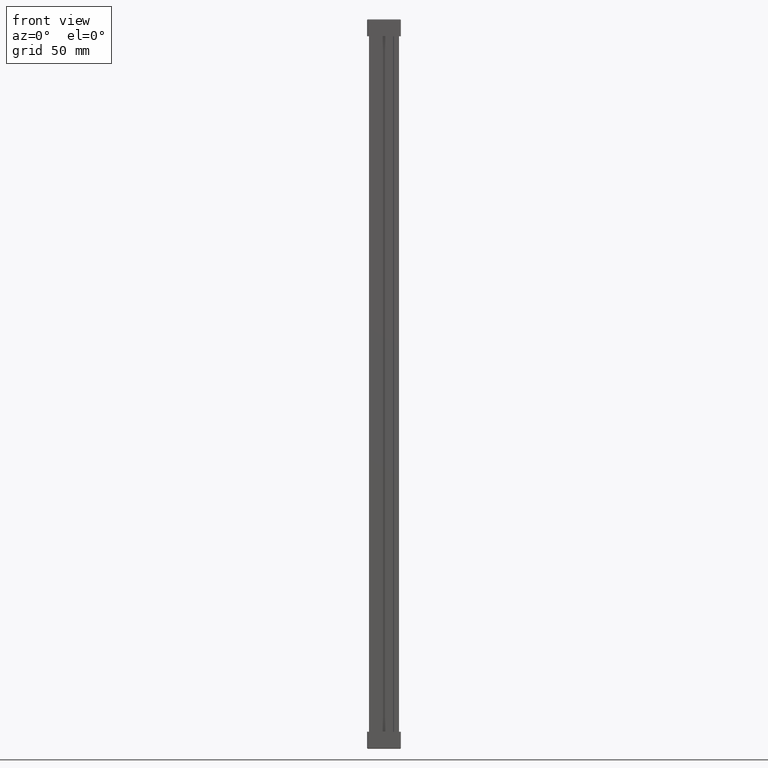
[diagram: clean part render]
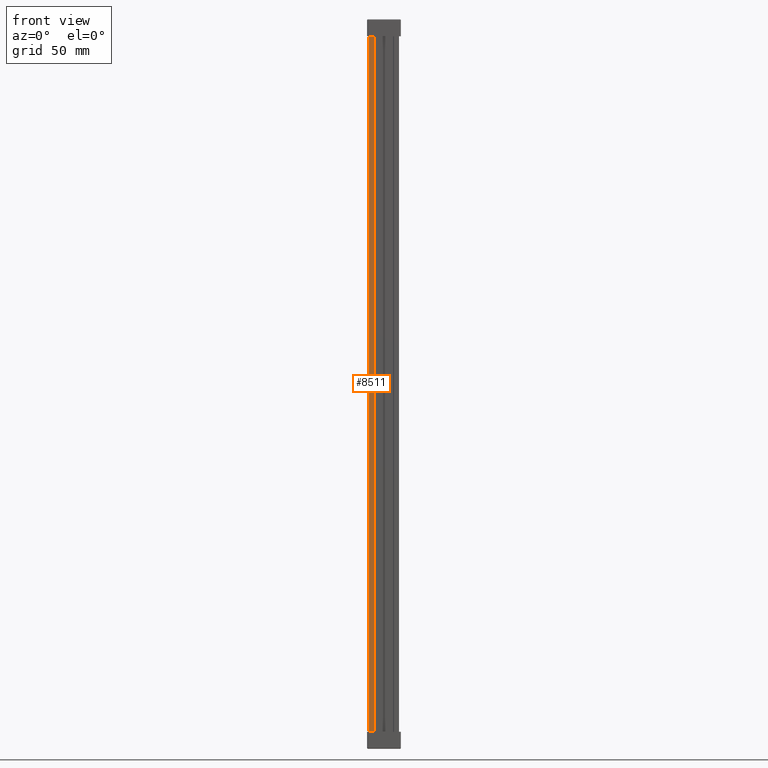
[diagram: same view with one face highlighted and labeled with its STEP entity id]
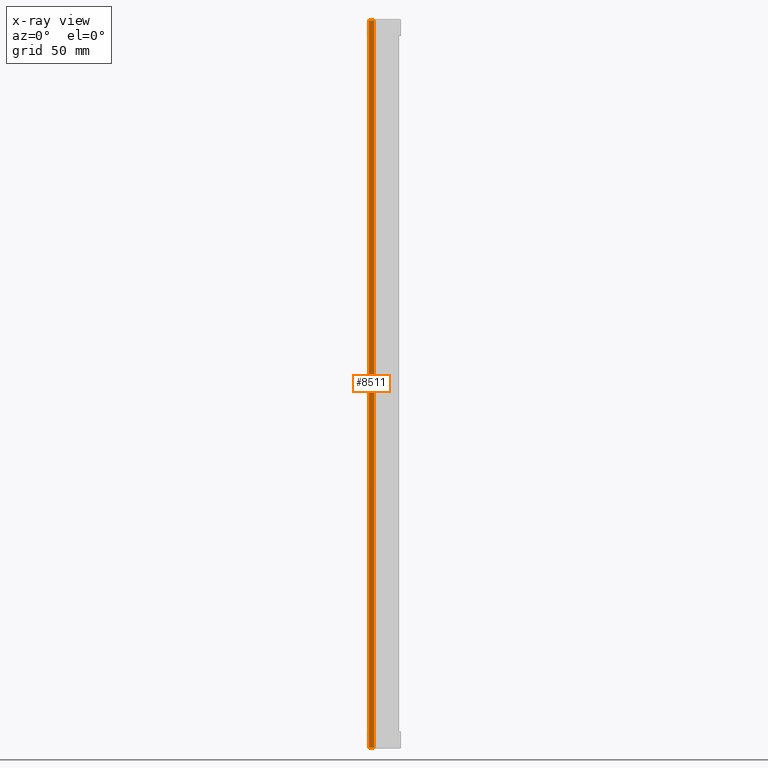
[diagram: x-ray of the same camera — body ghosted, the highlighted face saturated]
A machine part, front view. The second image highlights one B-rep face of the part: STEP entity #8511.
The next image is the same camera in x-ray: the body ghosted, the highlighted face saturated — about 0% of this face is hidden behind the body in this view.
In plain terms, the highlighted planar face has unit normal (0, 1, 0).
Its self-contained STEP definition (entity closure, byte-faithful):
#728 = PLANE ( 'NONE',  #59874 ) ;
#730 = CARTESIAN_POINT ( 'NONE',  ( 11.74999999999998400, 0.0000000000000000000, 304.0000000000000000 ) ) ;
#752 = DIRECTION ( 'NONE',  ( 0.0000000000000000000, -0.0000000000000000000, 1.000000000000000000 ) ) ;
#766 = FACE_OUTER_BOUND ( 'NONE', #6013, .T. ) ;
#772 = DIRECTION ( 'NONE',  ( 0.0000000000000000000, 1.000000000000000000, 0.0000000000000000000 ) ) ;
#3229 = ORIENTED_EDGE ( 'NONE', *, *, #9681, .F. ) ;
#3252 = ORIENTED_EDGE ( 'NONE', *, *, #9711, .F. ) ;
#3266 = ORIENTED_EDGE ( 'NONE', *, *, #9721, .T. ) ;
#3275 = ORIENTED_EDGE ( 'NONE', *, *, #9758, .F. ) ;
#3291 = ORIENTED_EDGE ( 'NONE', *, *, #9673, .F. ) ;
#3320 = ORIENTED_EDGE ( 'NONE', *, *, #9727, .F. ) ;
#6013 = EDGE_LOOP ( 'NONE', ( #3266, #3252, #3320, #3291, #3229, #3275 ) ) ;
#8511 = ADVANCED_FACE ( 'NONE', ( #766 ), #728, .F. ) ;
#9673 = EDGE_CURVE ( 'NONE', #12571, #12724, #51328, .T. ) ;
#9681 = EDGE_CURVE ( 'NONE', #12671, #12571, #51452, .T. ) ;
#9711 = EDGE_CURVE ( 'NONE', #12676, #12697, #32522, .T. ) ;
#9721 = EDGE_CURVE ( 'NONE', #12698, #12697, #51638, .T. ) ;
#9727 = EDGE_CURVE ( 'NONE', #12724, #12676, #51743, .T. ) ;
#9758 = EDGE_CURVE ( 'NONE', #12698, #12671, #32559, .T. ) ;
#12571 = VERTEX_POINT ( 'NONE', #38803 ) ;
#12671 = VERTEX_POINT ( 'NONE', #38935 ) ;
#12676 = VERTEX_POINT ( 'NONE', #38937 ) ;
#12697 = VERTEX_POINT ( 'NONE', #38954 ) ;
#12698 = VERTEX_POINT ( 'NONE', #38969 ) ;
#12724 = VERTEX_POINT ( 'NONE', #39000 ) ;
#32442 = AXIS2_PLACEMENT_3D ( 'NONE', #51644, #51612, #51635 ) ;
#32455 = VECTOR ( 'NONE', #51437, 1000.000000000000000 ) ;
#32503 = VECTOR ( 'NONE', #51693, 1000.000000000000000 ) ;
#32522 = CIRCLE ( 'NONE', #32442, 0.5000000000000004400 ) ;
#32546 = VECTOR ( 'NONE', #51584, 1000.000000000000000 ) ;
#32548 = VECTOR ( 'NONE', #51356, 1000.000000000000000 ) ;
#32559 = CIRCLE ( 'NONE', #32667, 0.5000000000000004400 ) ;
#32667 = AXIS2_PLACEMENT_3D ( 'NONE', #51869, #51923, #51919 ) ;
#38803 = CARTESIAN_POINT ( 'NONE',  ( 3.999999999999892500, 0.0000000000000000000, 303.9999999999993700 ) ) ;
#38935 = CARTESIAN_POINT ( 'NONE',  ( 0.05000000020467106100, 0.0000000000000000000, 303.9999999999999400 ) ) ;
#38937 = CARTESIAN_POINT ( 'NONE',  ( 0.05000000020459298400, 0.0000000000000000000, -264.0000000000000000 ) ) ;
#38954 = CARTESIAN_POINT ( 'NONE',  ( 0.0000000000000000000, 0.0000000000000000000, -263.9974937185326700 ) ) ;
#38969 = CARTESIAN_POINT ( 'NONE',  ( 0.0000000000000000000, 0.0000000000000000000, 303.9974937185326700 ) ) ;
#39000 = CARTESIAN_POINT ( 'NONE',  ( 3.999999999999892500, 0.0000000000000000000, -263.9999999999995500 ) ) ;
#51328 = LINE ( 'NONE', #51376, #32548 ) ;
#51356 = DIRECTION ( 'NONE',  ( -0.0000000000000000000, 0.0000000000000000000, -1.000000000000000000 ) ) ;
#51376 = CARTESIAN_POINT ( 'NONE',  ( 3.999999999999892500, 0.0000000000000000000, 304.0000000000000000 ) ) ;
#51425 = CARTESIAN_POINT ( 'NONE',  ( 11.74999999999998400, 0.0000000000000000000, 304.0000000000000000 ) ) ;
#51437 = DIRECTION ( 'NONE',  ( 1.000000000000000000, 0.0000000000000000000, -0.0000000000000000000 ) ) ;
#51452 = LINE ( 'NONE', #51425, #32455 ) ;
#51584 = DIRECTION ( 'NONE',  ( 0.0000000000000000000, 0.0000000000000000000, -1.000000000000000000 ) ) ;
#51596 = CARTESIAN_POINT ( 'NONE',  ( 0.0000000000000000000, 0.0000000000000000000, 304.0000000000000000 ) ) ;
#51612 = DIRECTION ( 'NONE',  ( -0.0000000000000000000, 1.000000000000000000, -0.0000000000000000000 ) ) ;
#51635 = DIRECTION ( 'NONE',  ( 0.0000000000000000000, 0.0000000000000000000, -1.000000000000000000 ) ) ;
#51638 = LINE ( 'NONE', #51596, #32546 ) ;
#51644 = CARTESIAN_POINT ( 'NONE',  ( 0.05000000020459298400, 0.0000000000000000000, -263.4999999999998900 ) ) ;
#51689 = CARTESIAN_POINT ( 'NONE',  ( 11.74999999999998400, 0.0000000000000000000, -264.0000000000000600 ) ) ;
#51693 = DIRECTION ( 'NONE',  ( -1.000000000000000000, -0.0000000000000000000, 0.0000000000000000000 ) ) ;
#51743 = LINE ( 'NONE', #51689, #32503 ) ;
#51869 = CARTESIAN_POINT ( 'NONE',  ( 0.05000000020459298400, 0.0000000000000000000, 303.4999999999999400 ) ) ;
#51919 = DIRECTION ( 'NONE',  ( 1.421660098671616400E-014, 0.0000000000000000000, -1.000000000000000000 ) ) ;
#51923 = DIRECTION ( 'NONE',  ( -0.0000000000000000000, 1.000000000000000000, -0.0000000000000000000 ) ) ;
#59874 = AXIS2_PLACEMENT_3D ( 'NONE', #730, #772, #752 ) ;